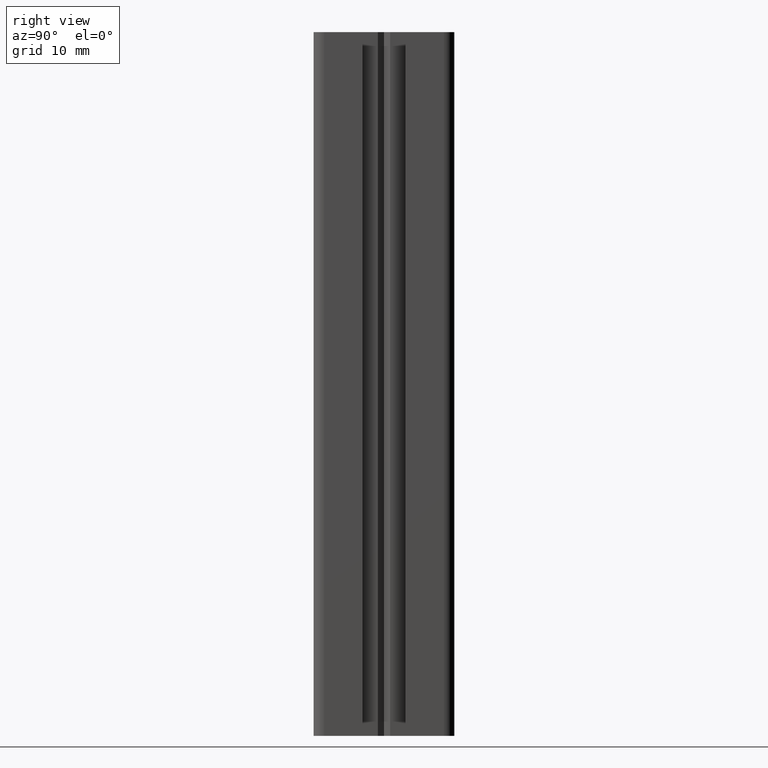
[diagram: clean part render]
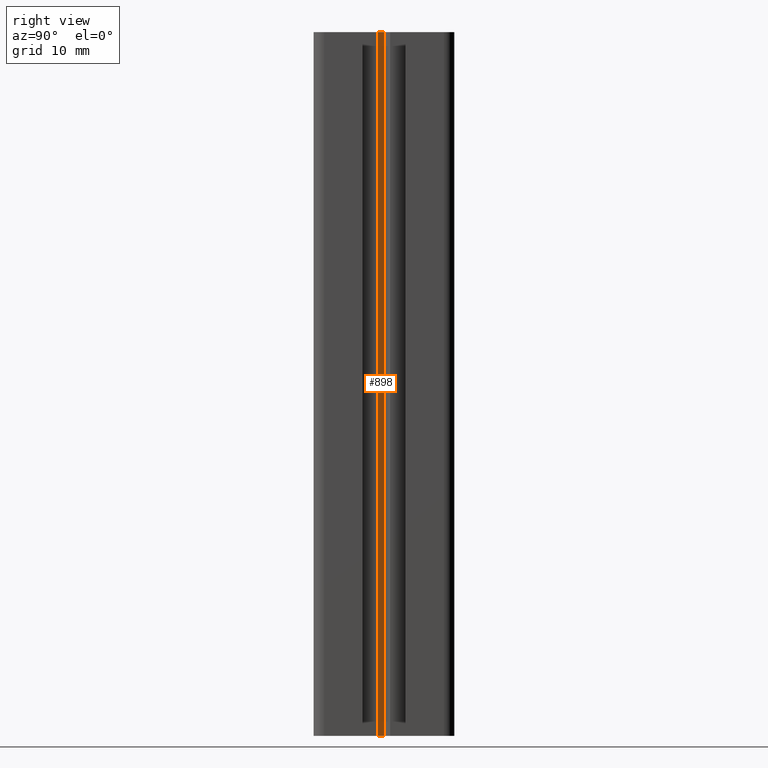
[diagram: same view with one face highlighted and labeled with its STEP entity id]
A machine part, right view. The second image highlights one B-rep face of the part: STEP entity #898.
In plain terms, the highlighted planar face has unit normal (-0.866, -0.5, 0).
Its self-contained STEP definition (entity closure, byte-faithful):
#25 = VERTEX_POINT ( 'NONE', #1624 ) ;
#43 = VERTEX_POINT ( 'NONE', #1645 ) ;
#47 = EDGE_CURVE ( 'NONE', #43, #25, #1636, .T. ) ;
#152 = VERTEX_POINT ( 'NONE', #1802 ) ;
#181 = VERTEX_POINT ( 'NONE', #1868 ) ;
#194 = EDGE_CURVE ( 'NONE', #181, #152, #1901, .T. ) ;
#892 = EDGE_CURVE ( 'NONE', #181, #43, #3041, .T. ) ;
#895 = ORIENTED_EDGE ( 'NONE', *, *, #899, .F. ) ;
#896 = EDGE_LOOP ( 'NONE', ( #913, #895, #948, #951 ) ) ;
#898 = ADVANCED_FACE ( 'NONE', ( #3046 ), #3042, .F. ) ;
#899 = EDGE_CURVE ( 'NONE', #152, #25, #3037, .T. ) ;
#913 = ORIENTED_EDGE ( 'NONE', *, *, #47, .T. ) ;
#948 = ORIENTED_EDGE ( 'NONE', *, *, #194, .F. ) ;
#951 = ORIENTED_EDGE ( 'NONE', *, *, #892, .T. ) ;
#1624 = CARTESIAN_POINT ( 'NONE',  ( 3.850000000000000100, 2.999999999999999900E-016, 0.0000000000000000000 ) ) ;
#1633 = DIRECTION ( 'NONE',  ( -0.5000001748438414100, 0.8660253028382761700, -0.0000000000000000000 ) ) ;
#1634 = VECTOR ( 'NONE', #1633, 1000.000000000000100 ) ;
#1635 = CARTESIAN_POINT ( 'NONE',  ( 3.850000000000000100, 2.999999999999999900E-016, 0.0000000000000000000 ) ) ;
#1636 = LINE ( 'NONE', #1635, #1634 ) ;
#1645 = CARTESIAN_POINT ( 'NONE',  ( 4.349999999999999600, -0.8660249999999996000, 0.0000000000000000000 ) ) ;
#1802 = CARTESIAN_POINT ( 'NONE',  ( 3.850000000000000100, 2.999999999999999900E-016, 100.0000000000000000 ) ) ;
#1868 = CARTESIAN_POINT ( 'NONE',  ( 4.349999999999999600, -0.8660249999999996000, 100.0000000000000000 ) ) ;
#1898 = DIRECTION ( 'NONE',  ( -0.5000001748438414100, 0.8660253028382761700, -0.0000000000000000000 ) ) ;
#1899 = VECTOR ( 'NONE', #1898, 1000.000000000000100 ) ;
#1900 = CARTESIAN_POINT ( 'NONE',  ( 3.850000000000000100, 2.999999999999999900E-016, 100.0000000000000000 ) ) ;
#1901 = LINE ( 'NONE', #1900, #1899 ) ;
#3028 = DIRECTION ( 'NONE',  ( -0.0000000000000000000, -0.0000000000000000000, -1.000000000000000000 ) ) ;
#3029 = VECTOR ( 'NONE', #3028, 1000.000000000000000 ) ;
#3030 = CARTESIAN_POINT ( 'NONE',  ( 3.850000000000000100, 2.999999999999999900E-016, 100.0000000000000000 ) ) ;
#3032 = DIRECTION ( 'NONE',  ( 0.5000001748438414100, -0.8660253028382761700, 0.0000000000000000000 ) ) ;
#3033 = DIRECTION ( 'NONE',  ( -0.8660253028382761700, -0.5000001748438414100, 0.0000000000000000000 ) ) ;
#3034 = CARTESIAN_POINT ( 'NONE',  ( 3.850000000000000100, 2.999999999999999900E-016, 100.0000000000000000 ) ) ;
#3037 = LINE ( 'NONE', #3030, #3029 ) ;
#3038 = DIRECTION ( 'NONE',  ( -0.0000000000000000000, -0.0000000000000000000, -1.000000000000000000 ) ) ;
#3039 = VECTOR ( 'NONE', #3038, 1000.000000000000000 ) ;
#3040 = CARTESIAN_POINT ( 'NONE',  ( 4.349999999999999600, -0.8660249999999996000, 100.0000000000000000 ) ) ;
#3041 = LINE ( 'NONE', #3040, #3039 ) ;
#3042 = PLANE ( 'NONE',  #3043 ) ;
#3043 = AXIS2_PLACEMENT_3D ( 'NONE', #3034, #3033, #3032 ) ;
#3046 = FACE_OUTER_BOUND ( 'NONE', #896, .T. ) ;